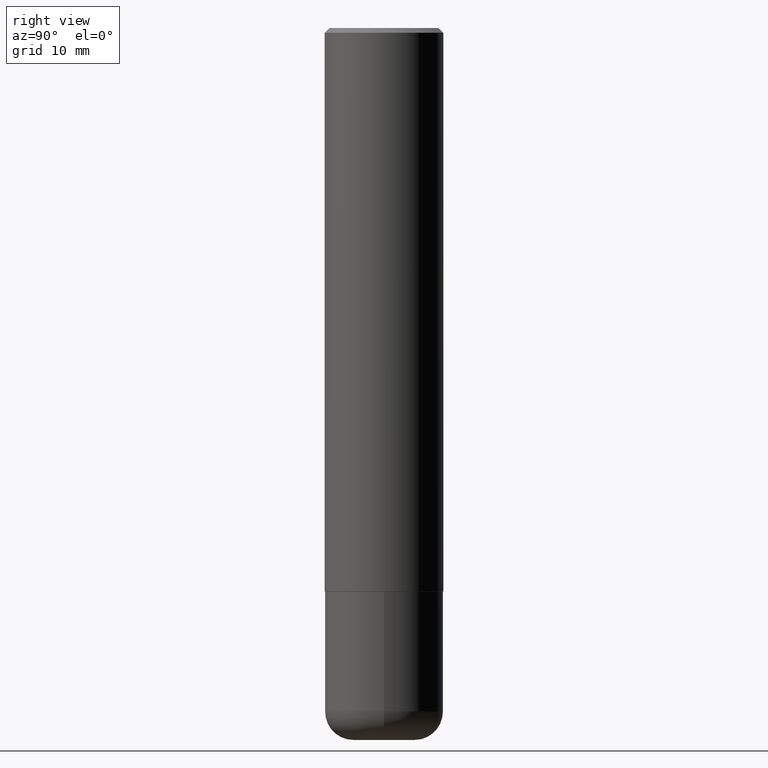
[diagram: clean part render]
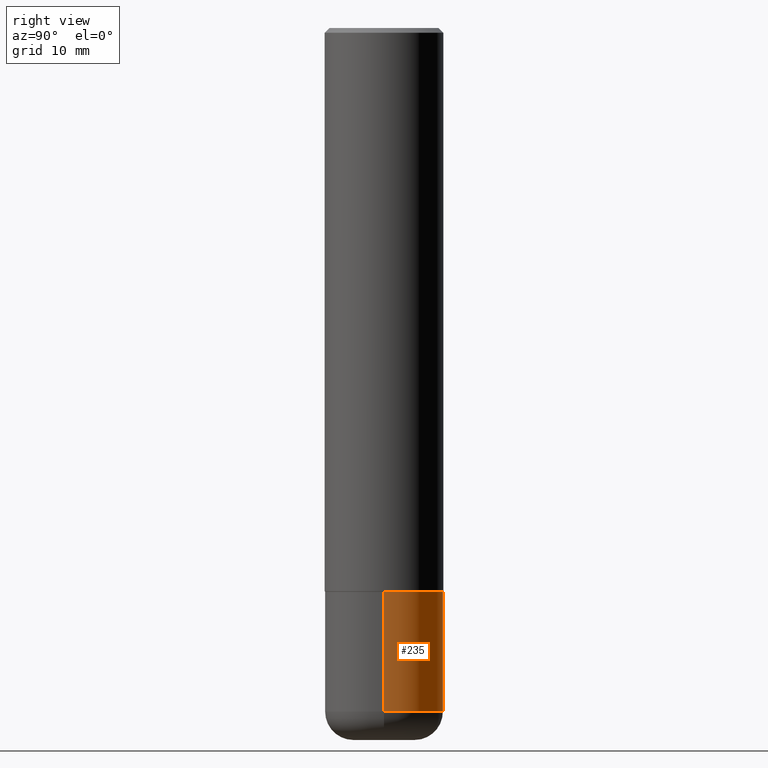
[diagram: same view with one face highlighted and labeled with its STEP entity id]
A machine part, right view. The second image highlights one B-rep face of the part: STEP entity #235.
In plain terms, the highlighted cylindrical surface (partial cylindrical patch) has radius 6.35 mm, axis along (-0, 0, 1).
Its self-contained STEP definition (entity closure, byte-faithful):
#8 = ORIENTED_EDGE ( 'NONE', *, *, #38, .T. ) ;
#21 = VERTEX_POINT ( 'NONE', #126 ) ;
#30 = CIRCLE ( 'NONE', #120, 0.2500000000000000000 ) ;
#37 = DIRECTION ( 'NONE',  ( 1.000000000000000000, -6.982962677686266711E-15, 0.000000000000000000 ) ) ;
#38 = EDGE_CURVE ( 'NONE', #21, #345, #273, .T. ) ;
#67 = DIRECTION ( 'NONE',  ( -2.445468806185136877E-29, 3.491481338843145188E-15, 1.000000000000000000 ) ) ;
#94 = VERTEX_POINT ( 'NONE', #103 ) ;
#100 = DIRECTION ( 'NONE',  ( -2.445468806185136597E-29, 3.491481338843145583E-15, 1.000000000000000000 ) ) ;
#103 = CARTESIAN_POINT ( 'NONE',  ( -0.2500000000000000000, -7.397510378410116032E-15, -2.375000000000000000 ) ) ;
#109 = EDGE_CURVE ( 'NONE', #21, #415, #231, .T. ) ;
#120 = AXIS2_PLACEMENT_3D ( 'NONE', #331, #296, #37 ) ;
#122 = CARTESIAN_POINT ( 'NONE',  ( 7.042950161813194609E-29, -1.005546625586826130E-14, -2.880000000000000338 ) ) ;
#125 = DIRECTION ( 'NONE',  ( 1.000000000000000000, -6.982962677686266711E-15, 4.876176775795935793E-29 ) ) ;
#126 = CARTESIAN_POINT ( 'NONE',  ( 0.2499999999999999722, -1.180120692528982640E-14, -2.880000000000000338 ) ) ;
#129 = CARTESIAN_POINT ( 'NONE',  ( -0.2500000000000000000, 1.776356839400250465E-15, -1.229733772563726445E-29 ) ) ;
#160 = VECTOR ( 'NONE', #67, 39.37007874015748143 ) ;
#161 = VECTOR ( 'NONE', #365, 39.37007874015748143 ) ;
#162 = FACE_OUTER_BOUND ( 'NONE', #184, .T. ) ;
#173 = EDGE_CURVE ( 'NONE', #415, #94, #30, .T. ) ;
#183 = AXIS2_PLACEMENT_3D ( 'NONE', #122, #381, #221 ) ;
#184 = EDGE_LOOP ( 'NONE', ( #8, #254, #343, #323 ) ) ;
#221 = DIRECTION ( 'NONE',  ( 1.000000000000000000, -6.982962677686262766E-15, 0.000000000000000000 ) ) ;
#231 = LINE ( 'NONE', #360, #161 ) ;
#235 = ADVANCED_FACE ( 'NONE', ( #162 ), #359, .T. ) ;
#254 = ORIENTED_EDGE ( 'NONE', *, *, #275, .T. ) ;
#273 = CIRCLE ( 'NONE', #183, 0.2500000000000000000 ) ;
#275 = EDGE_CURVE ( 'NONE', #345, #94, #283, .T. ) ;
#277 = CARTESIAN_POINT ( 'NONE',  ( 0.000000000000000000, 0.000000000000000000, 0.000000000000000000 ) ) ;
#283 = LINE ( 'NONE', #129, #160 ) ;
#296 = DIRECTION ( 'NONE',  ( -2.445468806185136597E-29, 3.491481338843145583E-15, 1.000000000000000000 ) ) ;
#302 = CARTESIAN_POINT ( 'NONE',  ( 0.2500000000000000000, -1.003800884917403837E-14, -2.375000000000000000 ) ) ;
#314 = CARTESIAN_POINT ( 'NONE',  ( -0.2499999999999999722, -8.279109416468010833E-15, -2.880000000000000338 ) ) ;
#323 = ORIENTED_EDGE ( 'NONE', *, *, #109, .F. ) ;
#331 = CARTESIAN_POINT ( 'NONE',  ( 5.807988414689700538E-29, -8.292268179752471696E-15, -2.375000000000000000 ) ) ;
#343 = ORIENTED_EDGE ( 'NONE', *, *, #173, .F. ) ;
#345 = VERTEX_POINT ( 'NONE', #314 ) ;
#359 = CYLINDRICAL_SURFACE ( 'NONE', #366, 0.2500000000000000000 ) ;
#360 = CARTESIAN_POINT ( 'NONE',  ( 0.2500000000000000000, -1.745740669421566678E-15, 1.219044193948983948E-29 ) ) ;
#365 = DIRECTION ( 'NONE',  ( -2.445468806185136877E-29, 3.491481338843145188E-15, 1.000000000000000000 ) ) ;
#366 = AXIS2_PLACEMENT_3D ( 'NONE', #277, #100, #125 ) ;
#381 = DIRECTION ( 'NONE',  ( -2.445468806185136597E-29, 3.491481338843145583E-15, 1.000000000000000000 ) ) ;
#415 = VERTEX_POINT ( 'NONE', #302 ) ;